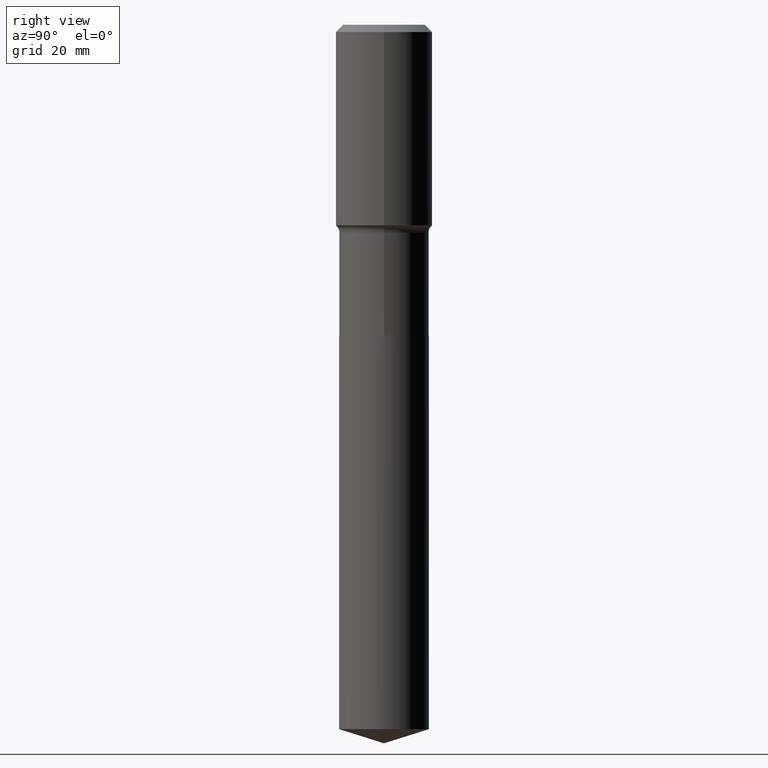
[diagram: clean part render]
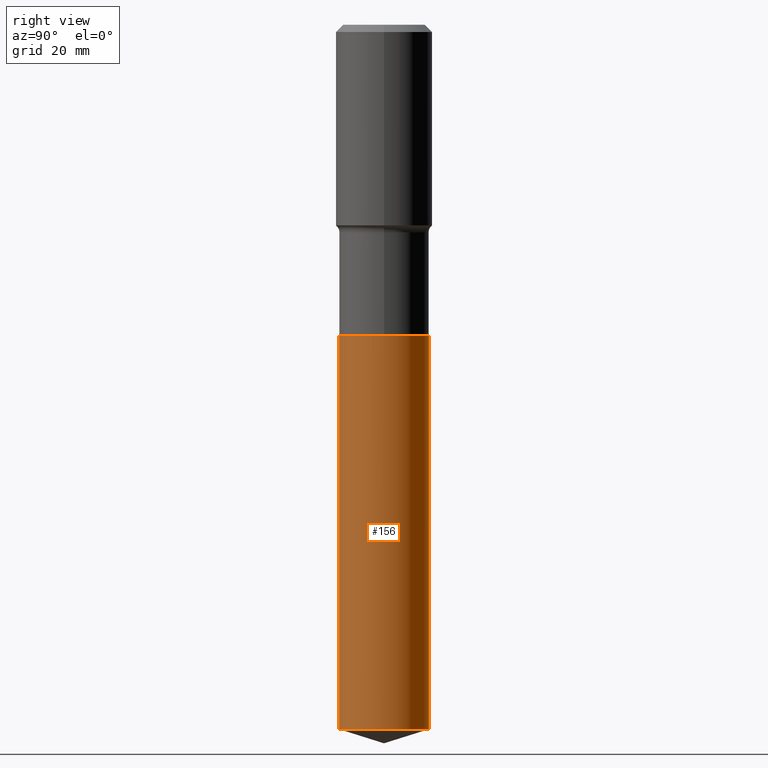
[diagram: same view with one face highlighted and labeled with its STEP entity id]
A machine part, right view. The second image highlights one B-rep face of the part: STEP entity #156.
In plain terms, the highlighted cylindrical surface (partial cylindrical patch) has radius 10.3187 mm, axis along (-0, 0, 1).
Its self-contained STEP definition (entity closure, byte-faithful):
#19 = AXIS2_PLACEMENT_3D ( 'NONE', #277, #126, #268 ) ;
#31 = VERTEX_POINT ( 'NONE', #35 ) ;
#32 = EDGE_LOOP ( 'NONE', ( #244, #209, #258, #51 ) ) ;
#35 = CARTESIAN_POINT ( 'NONE',  ( 2.886579864025563200E-15, 0.4062499999999901745, -2.812500000000001776 ) ) ;
#44 = EDGE_CURVE ( 'NONE', #492, #31, #400, .T. ) ;
#47 = CYLINDRICAL_SURFACE ( 'NONE', #19, 0.4062500000000000000 ) ;
#51 = ORIENTED_EDGE ( 'NONE', *, *, #262, .F. ) ;
#63 = VERTEX_POINT ( 'NONE', #267 ) ;
#70 = AXIS2_PLACEMENT_3D ( 'NONE', #465, #425, #200 ) ;
#74 = VECTOR ( 'NONE', #157, 39.37007874015748143 ) ;
#104 = CARTESIAN_POINT ( 'NONE',  ( -2.836828587809890051E-15, -0.4062500000000223155, -6.371909867017912177 ) ) ;
#126 = DIRECTION ( 'NONE',  ( -2.445379718509963318E-29, 3.491608917464549527E-15, 1.000000000000000000 ) ) ;
#142 = LINE ( 'NONE', #438, #462 ) ;
#155 = CARTESIAN_POINT ( 'NONE',  ( 6.877881017395696678E-29, -9.819791265496348060E-15, -2.812500000000000000 ) ) ;
#156 = ADVANCED_FACE ( 'NONE', ( #161 ), #47, .T. ) ;
#157 = DIRECTION ( 'NONE',  ( -2.445379718509963318E-29, 3.491608917464549921E-15, 1.000000000000000000 ) ) ;
#161 = FACE_OUTER_BOUND ( 'NONE', #32, .T. ) ;
#173 = EDGE_CURVE ( 'NONE', #340, #63, #437, .T. ) ;
#182 = CARTESIAN_POINT ( 'NONE',  ( 2.886579864025475636E-15, 0.4062499999999901745, -2.812500000000001776 ) ) ;
#200 = DIRECTION ( 'NONE',  ( -6.982962677686266711E-15, -1.000000000000000000, 2.689819562992505262E-15 ) ) ;
#209 = ORIENTED_EDGE ( 'NONE', *, *, #470, .T. ) ;
#228 = CARTESIAN_POINT ( 'NONE',  ( -2.836828587809976826E-15, -0.4062500000000098255, -2.812499999999998668 ) ) ;
#244 = ORIENTED_EDGE ( 'NONE', *, *, #173, .T. ) ;
#246 = AXIS2_PLACEMENT_3D ( 'NONE', #155, #384, #452 ) ;
#258 = ORIENTED_EDGE ( 'NONE', *, *, #44, .F. ) ;
#262 = EDGE_CURVE ( 'NONE', #340, #492, #142, .T. ) ;
#267 = CARTESIAN_POINT ( 'NONE',  ( 2.886579864025562411E-15, 0.4062499999999776845, -6.371909867017914841 ) ) ;
#268 = DIRECTION ( 'NONE',  ( -6.982962677686266711E-15, -1.000000000000000000, 4.034729344488758288E-15 ) ) ;
#277 = CARTESIAN_POINT ( 'NONE',  ( 6.877881017395696678E-29, -9.819791265496348060E-15, -2.812500000000000000 ) ) ;
#324 = DIRECTION ( 'NONE',  ( -2.445379718509963318E-29, 3.491608917464549921E-15, 1.000000000000000000 ) ) ;
#340 = VERTEX_POINT ( 'NONE', #104 ) ;
#384 = DIRECTION ( 'NONE',  ( -2.445379718509963318E-29, 3.491608917464549527E-15, 1.000000000000000000 ) ) ;
#400 = CIRCLE ( 'NONE', #246, 0.4062500000000000000 ) ;
#425 = DIRECTION ( 'NONE',  ( -2.445379718509963318E-29, 3.491608917464549527E-15, 1.000000000000000000 ) ) ;
#437 = CIRCLE ( 'NONE', #70, 0.4062500000000000000 ) ;
#438 = CARTESIAN_POINT ( 'NONE',  ( -2.836828587809976826E-15, -0.4062500000000098255, -2.812499999999998668 ) ) ;
#447 = LINE ( 'NONE', #182, #74 ) ;
#452 = DIRECTION ( 'NONE',  ( -6.982962677686266711E-15, -1.000000000000000000, 4.034729344488758288E-15 ) ) ;
#462 = VECTOR ( 'NONE', #324, 39.37007874015748143 ) ;
#465 = CARTESIAN_POINT ( 'NONE',  ( 1.558198971606554722E-28, -2.224785849808740087E-14, -6.371909867017913065 ) ) ;
#470 = EDGE_CURVE ( 'NONE', #63, #31, #447, .T. ) ;
#492 = VERTEX_POINT ( 'NONE', #228 ) ;